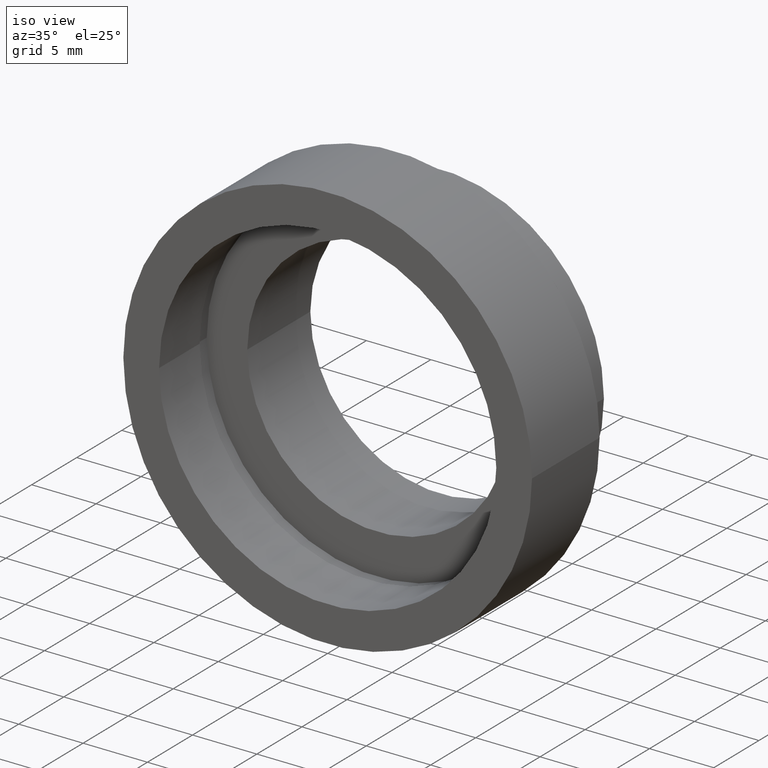
[diagram: clean part render]
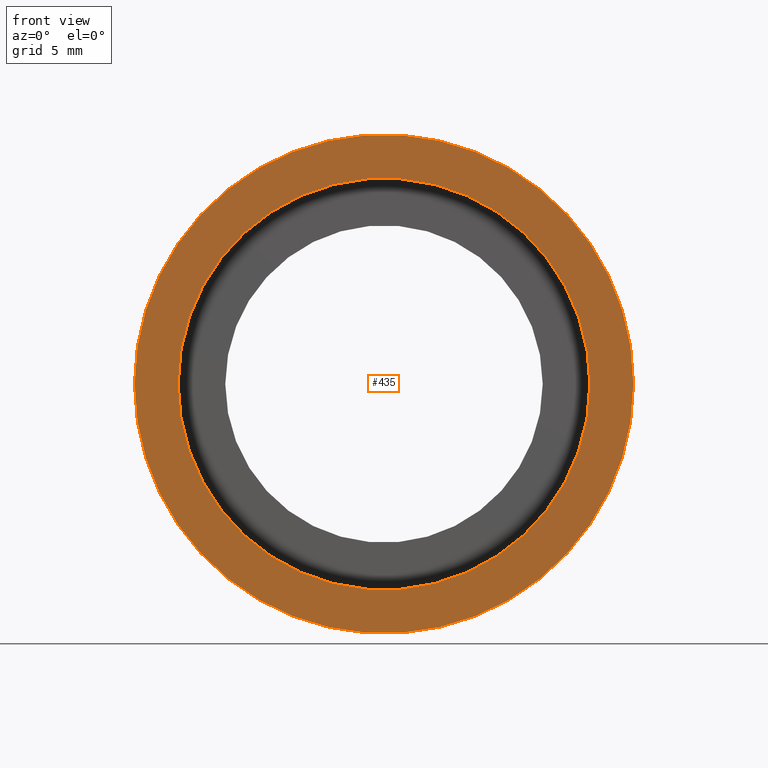
[diagram: tour spotlight — one face highlighted and labeled with its STEP entity id]
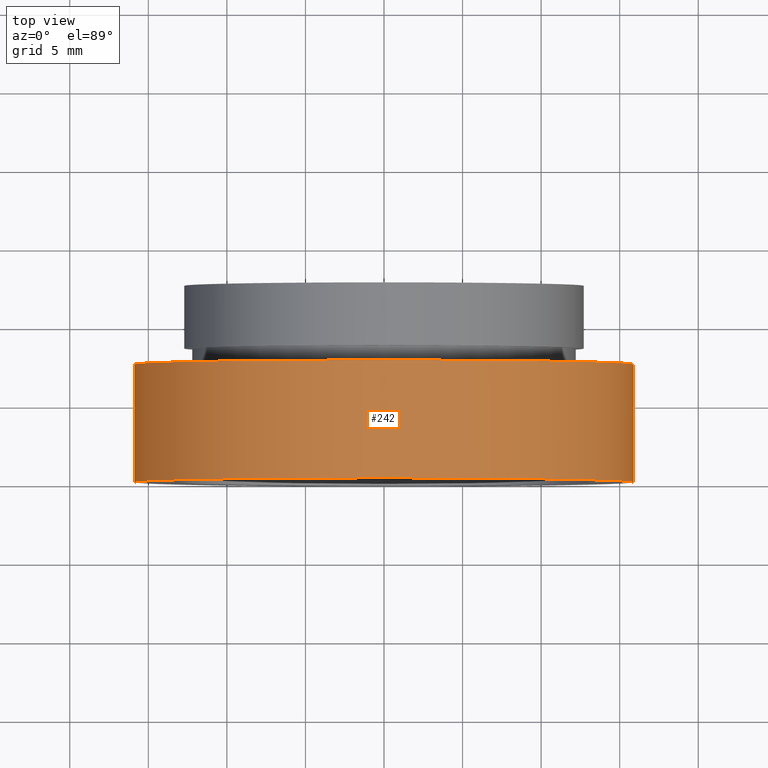
[diagram: tour spotlight — one face highlighted and labeled with its STEP entity id]
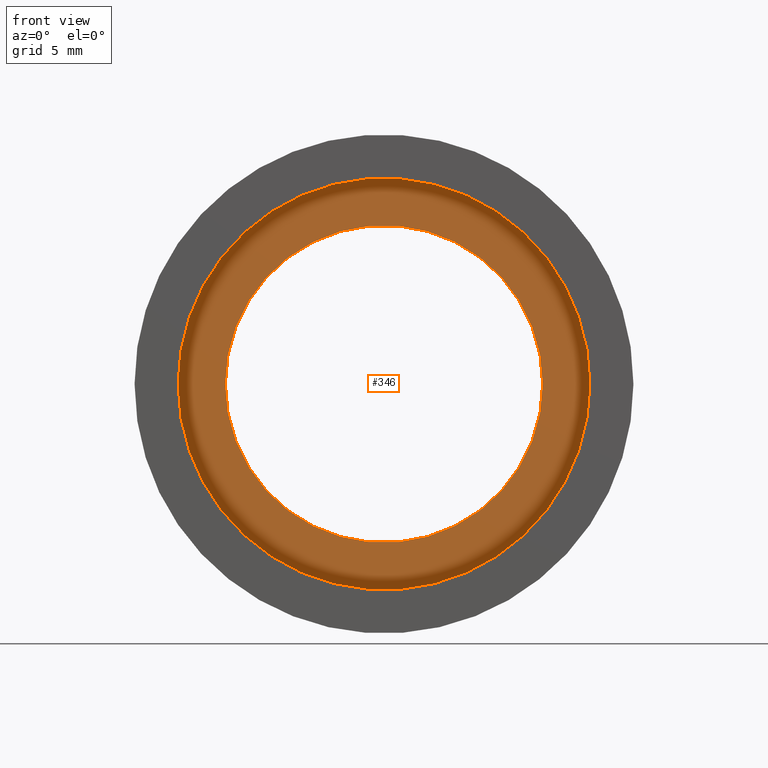
[diagram: tour spotlight — one face highlighted and labeled with its STEP entity id]
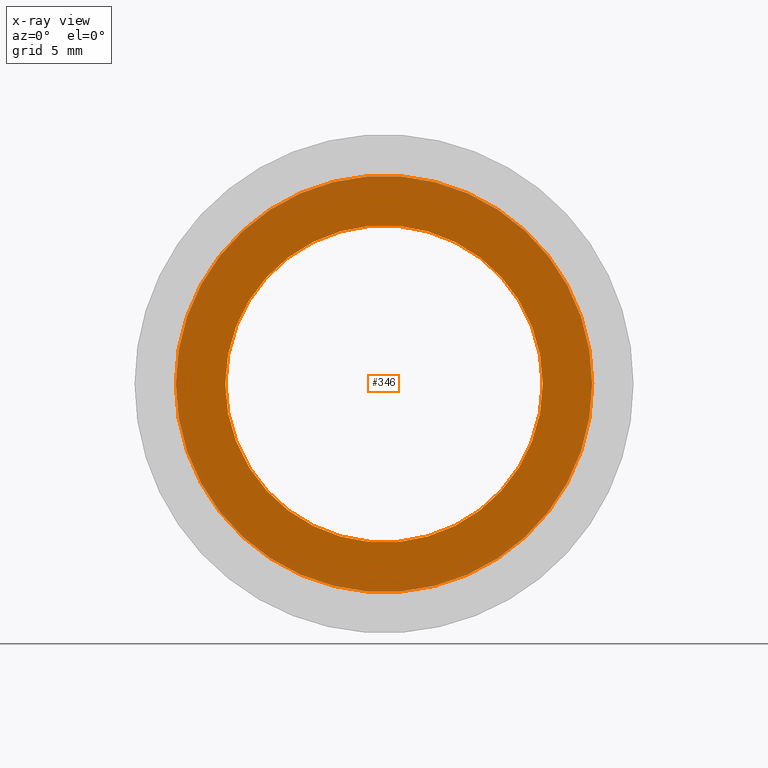
[diagram: x-ray of the same camera — body ghosted, this tour face saturated]
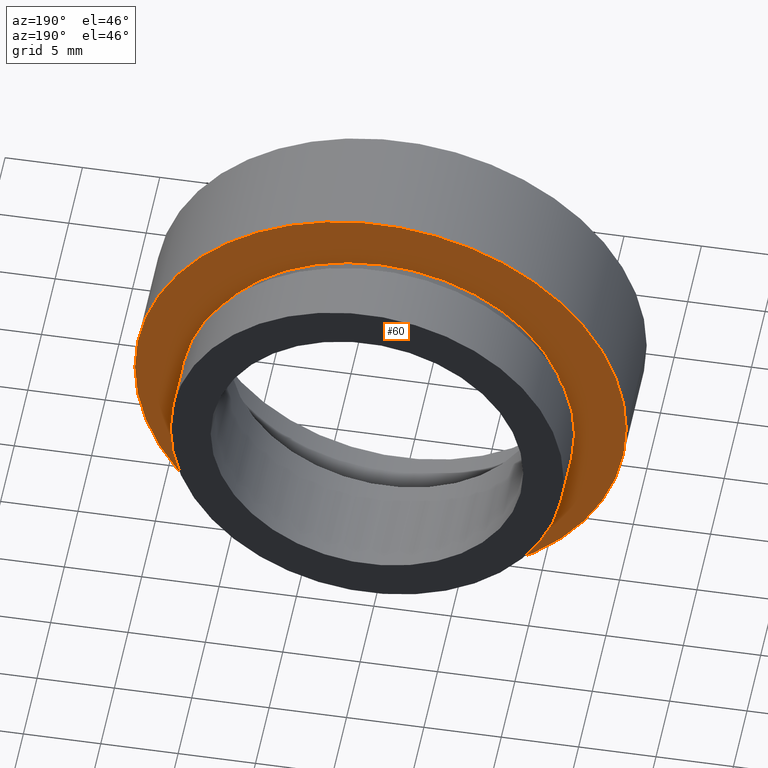
[diagram: tour spotlight — one face highlighted and labeled with its STEP entity id]
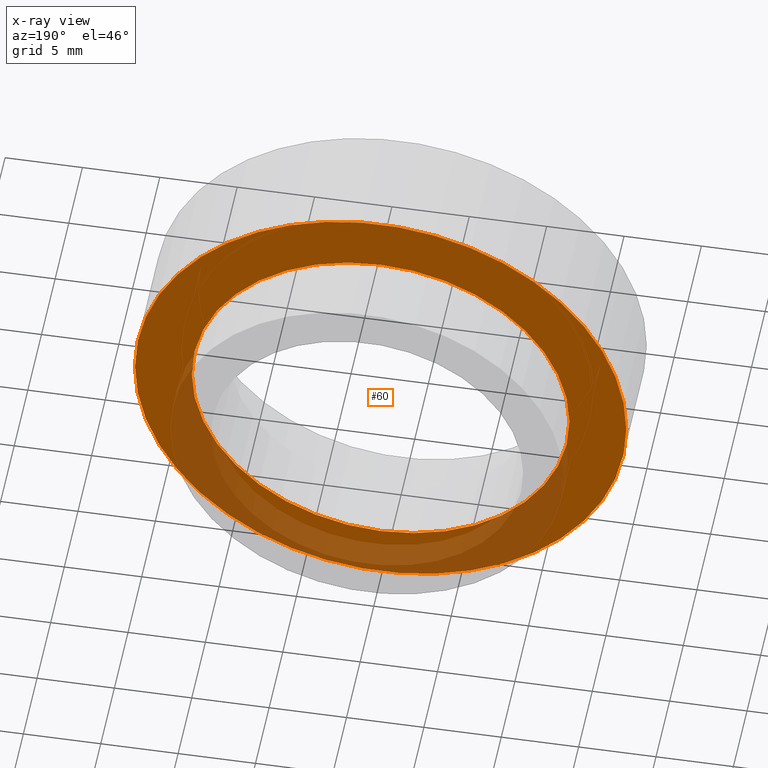
[diagram: x-ray of the same camera — body ghosted, this tour face saturated]
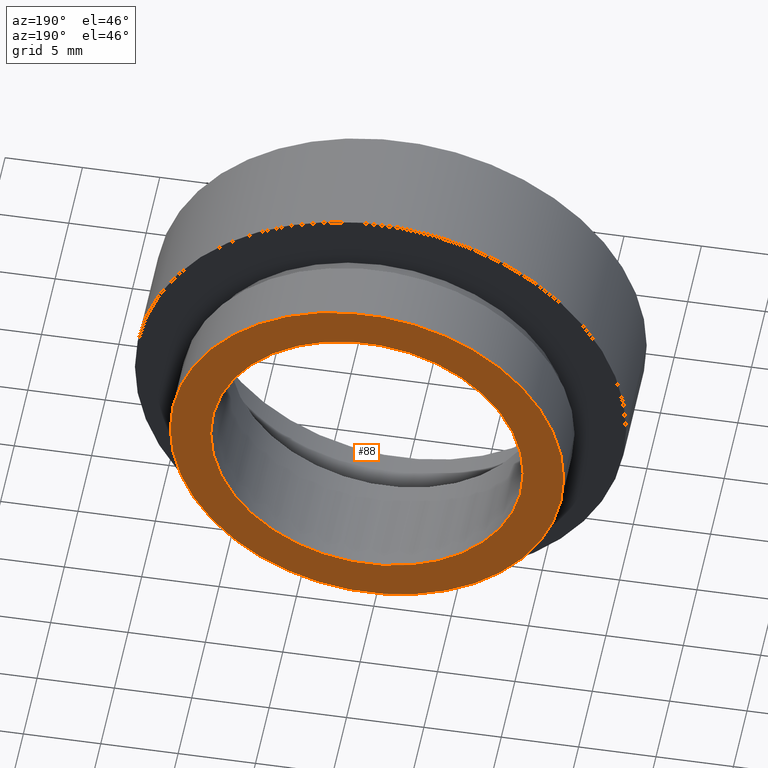
[diagram: tour spotlight — one face highlighted and labeled with its STEP entity id]
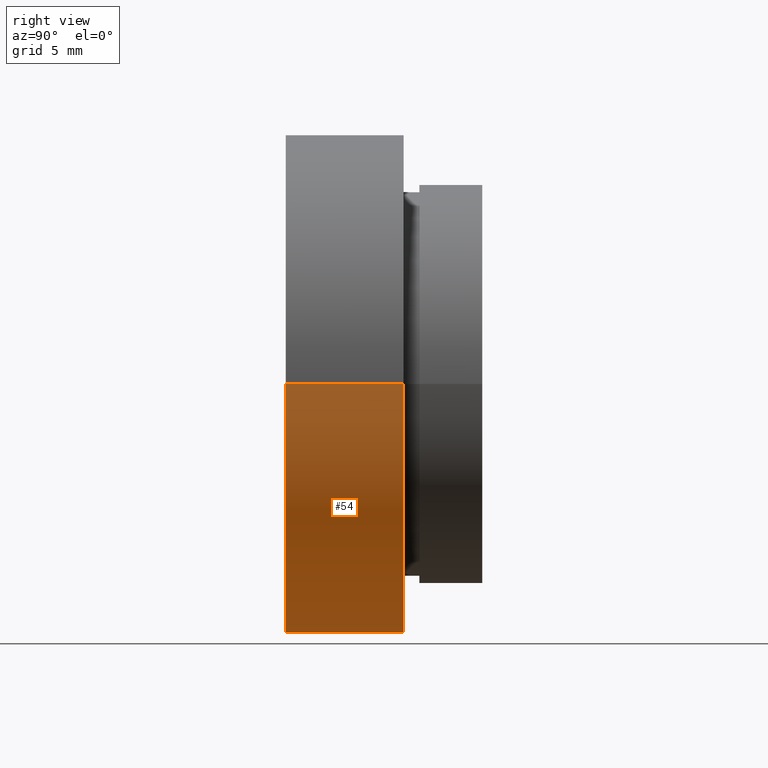
[diagram: tour spotlight — one face highlighted and labeled with its STEP entity id]
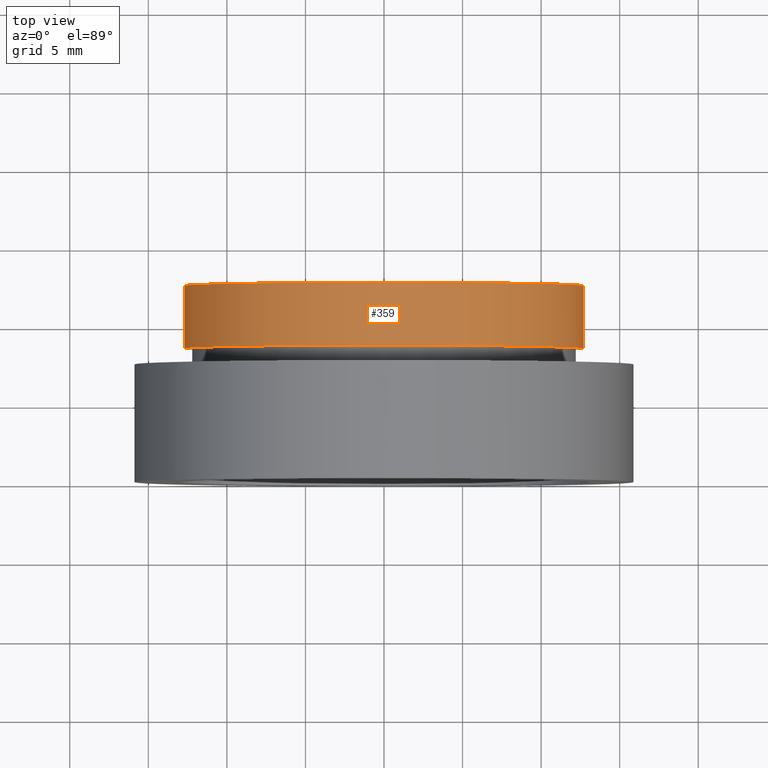
[diagram: tour spotlight — one face highlighted and labeled with its STEP entity id]
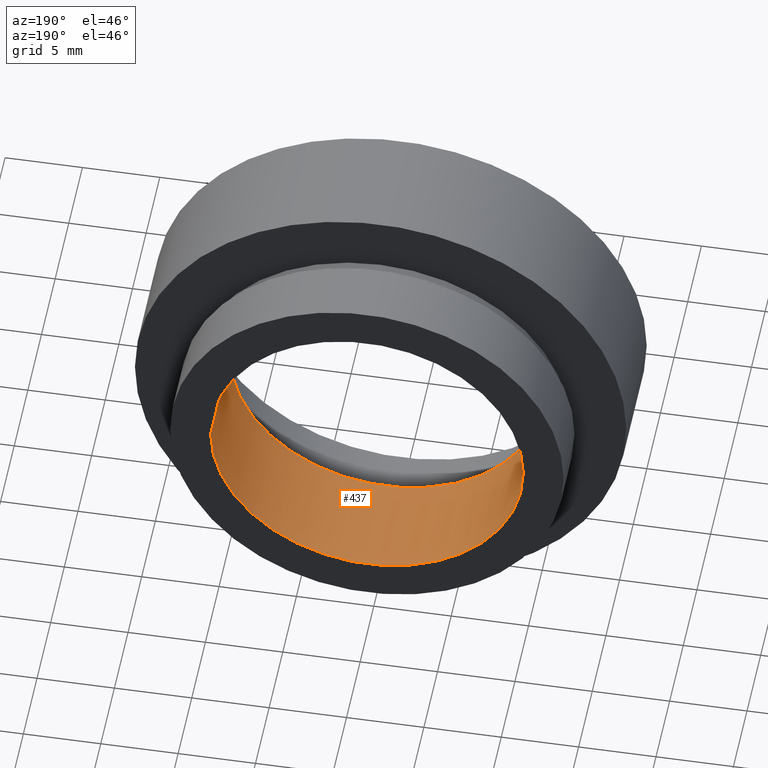
[diagram: tour spotlight — one face highlighted and labeled with its STEP entity id]
A machine part: a face-by-face anatomy tour. The part has 18 B-rep faces; the first image is the clean iso view, then the 8 largest visible faces are spotlighted one at a time (largest first), each with its STEP entity span.

Face 1 — front view, entity #435. In plain terms, the highlighted planar face has unit normal (-0, 1, 0).
Definition (entity closure, byte-faithful):
#27 = VERTEX_POINT ( 'NONE', #160 ) ;
#44 = VERTEX_POINT ( 'NONE', #164 ) ;
#47 = EDGE_CURVE ( 'NONE', #155, #258, #526, .T. ) ;
#49 = DIRECTION ( 'NONE',  ( -1.224646799147351000E-016, 1.000000000000000000, -0.0000000000000000000 ) ) ;
#52 = AXIS2_PLACEMENT_3D ( 'NONE', #387, #49, #618 ) ;
#61 = AXIS2_PLACEMENT_3D ( 'NONE', #302, #350, #425 ) ;
#91 = CARTESIAN_POINT ( 'NONE',  ( 15.87500000000000000, -1.944126793646428200E-016, 0.0000000000000000000 ) ) ;
#119 = CARTESIAN_POINT ( 'NONE',  ( 13.10000000000000100, 1.604287306883029700E-015, 1.604287306883032600E-015 ) ) ;
#132 = CIRCLE ( 'NONE', #52, 15.87499999999999600 ) ;
#155 = VERTEX_POINT ( 'NONE', #484 ) ;
#160 = CARTESIAN_POINT ( 'NONE',  ( -15.87499999999999300, -5.413573745600033100E-015, 0.0000000000000000000 ) ) ;
#164 = CARTESIAN_POINT ( 'NONE',  ( 15.87500000000000000, -1.525320158307194900E-015, 1.944126793646423200E-015 ) ) ;
#168 = AXIS2_PLACEMENT_3D ( 'NONE', #489, #535, #314 ) ;
#180 = FACE_OUTER_BOUND ( 'NONE', #211, .T. ) ;
#196 = ORIENTED_EDGE ( 'NONE', *, *, #490, .F. ) ;
#210 = ORIENTED_EDGE ( 'NONE', *, *, #461, .T. ) ;
#211 = EDGE_LOOP ( 'NONE', ( #196, #332 ) ) ;
#234 = FACE_BOUND ( 'NONE', #301, .T. ) ;
#240 = DIRECTION ( 'NONE',  ( -1.000000000000000000, -1.224646799147351000E-016, 0.0000000000000000000 ) ) ;
#254 = CIRCLE ( 'NONE', #611, 13.10000000000000000 ) ;
#258 = VERTEX_POINT ( 'NONE', #119 ) ;
#301 = EDGE_LOOP ( 'NONE', ( #408, #210 ) ) ;
#302 = CARTESIAN_POINT ( 'NONE',  ( 2.067940818438636500E-015, -3.469446951953614200E-015, 0.0000000000000000000 ) ) ;
#314 = DIRECTION ( 'NONE',  ( -1.000000000000000000, -1.224646799147351000E-016, 0.0000000000000000000 ) ) ;
#332 = ORIENTED_EDGE ( 'NONE', *, *, #507, .F. ) ;
#350 = DIRECTION ( 'NONE',  ( -1.224646799147351000E-016, 1.000000000000000000, -0.0000000000000000000 ) ) ;
#380 = DIRECTION ( 'NONE',  ( -1.000000000000000000, -1.224646799147351000E-016, 0.0000000000000000000 ) ) ;
#387 = CARTESIAN_POINT ( 'NONE',  ( 2.067940818438636500E-015, -3.469446951953614200E-015, 0.0000000000000000000 ) ) ;
#405 = CIRCLE ( 'NONE', #61, 15.87499999999999600 ) ;
#408 = ORIENTED_EDGE ( 'NONE', *, *, #47, .T. ) ;
#425 = DIRECTION ( 'NONE',  ( -1.000000000000000000, -1.224646799147350700E-016, 0.0000000000000000000 ) ) ;
#435 = ADVANCED_FACE ( 'NONE', ( #180, #234 ), #612, .F. ) ;
#461 = EDGE_CURVE ( 'NONE', #258, #155, #254, .T. ) ;
#484 = CARTESIAN_POINT ( 'NONE',  ( -13.09999999999999800, -1.604287306883029700E-015, 0.0000000000000000000 ) ) ;
#489 = CARTESIAN_POINT ( 'NONE',  ( 2.067940818438636100E-015, 0.0000000000000000000, 0.0000000000000000000 ) ) ;
#490 = EDGE_CURVE ( 'NONE', #27, #44, #132, .T. ) ;
#500 = AXIS2_PLACEMENT_3D ( 'NONE', #91, #568, #240 ) ;
#507 = EDGE_CURVE ( 'NONE', #44, #27, #405, .T. ) ;
#522 = DIRECTION ( 'NONE',  ( -1.224646799147351000E-016, 1.000000000000000000, -0.0000000000000000000 ) ) ;
#526 = CIRCLE ( 'NONE', #168, 13.10000000000000000 ) ;
#535 = DIRECTION ( 'NONE',  ( -1.224646799147351000E-016, 1.000000000000000000, -0.0000000000000000000 ) ) ;
#568 = DIRECTION ( 'NONE',  ( -1.224646799147351000E-016, 1.000000000000000000, 0.0000000000000000000 ) ) ;
#604 = CARTESIAN_POINT ( 'NONE',  ( 2.067940818438636100E-015, 0.0000000000000000000, 0.0000000000000000000 ) ) ;
#611 = AXIS2_PLACEMENT_3D ( 'NONE', #604, #522, #380 ) ;
#612 = PLANE ( 'NONE',  #500 ) ;
#618 = DIRECTION ( 'NONE',  ( -1.000000000000000000, -1.224646799147350700E-016, 0.0000000000000000000 ) ) ;

Face 2 — top view, entity #242. In plain terms, the highlighted cylindrical surface (partial cylindrical patch) has radius 15.875 mm, axis along (-0, 1, -0).
Definition (entity closure, byte-faithful):
#2 = EDGE_CURVE ( 'NONE', #27, #429, #486, .T. ) ;
#27 = VERTEX_POINT ( 'NONE', #160 ) ;
#44 = VERTEX_POINT ( 'NONE', #164 ) ;
#48 = DIRECTION ( 'NONE',  ( -1.224646799147351000E-016, 1.000000000000000000, -0.0000000000000000000 ) ) ;
#49 = DIRECTION ( 'NONE',  ( -1.224646799147351000E-016, 1.000000000000000000, -0.0000000000000000000 ) ) ;
#52 = AXIS2_PLACEMENT_3D ( 'NONE', #387, #49, #618 ) ;
#65 = CARTESIAN_POINT ( 'NONE',  ( 0.0000000000000000000, 16.88601823708207700, 0.0000000000000000000 ) ) ;
#67 = EDGE_CURVE ( 'NONE', #44, #361, #319, .T. ) ;
#108 = DIRECTION ( 'NONE',  ( -1.000000000000000000, -2.185478394931410600E-016, 0.0000000000000000000 ) ) ;
#113 = DIRECTION ( 'NONE',  ( -1.000000000000000000, -1.092739197465705300E-016, 0.0000000000000000000 ) ) ;
#122 = CARTESIAN_POINT ( 'NONE',  ( 15.87500000000000000, 16.88601823708208000, 1.944126793646423200E-015 ) ) ;
#123 = CARTESIAN_POINT ( 'NONE',  ( 15.87500000000000000, 7.500000000000000000, 1.944126793646423200E-015 ) ) ;
#128 = EDGE_CURVE ( 'NONE', #429, #361, #413, .T. ) ;
#132 = CIRCLE ( 'NONE', #52, 15.87499999999999600 ) ;
#153 = ORIENTED_EDGE ( 'NONE', *, *, #490, .T. ) ;
#158 = DIRECTION ( 'NONE',  ( -1.224646799147351000E-016, 1.000000000000000000, -0.0000000000000000000 ) ) ;
#160 = CARTESIAN_POINT ( 'NONE',  ( -15.87499999999999300, -5.413573745600033100E-015, 0.0000000000000000000 ) ) ;
#164 = CARTESIAN_POINT ( 'NONE',  ( 15.87500000000000000, -1.525320158307194900E-015, 1.944126793646423200E-015 ) ) ;
#165 = VECTOR ( 'NONE', #48, 1000.000000000000000 ) ;
#189 = CARTESIAN_POINT ( 'NONE',  ( -15.87500000000000000, 7.499999999999996400, 0.0000000000000000000 ) ) ;
#233 = CYLINDRICAL_SURFACE ( 'NONE', #532, 15.87500000000000000 ) ;
#242 = ADVANCED_FACE ( 'NONE', ( #544 ), #233, .T. ) ;
#261 = CARTESIAN_POINT ( 'NONE',  ( 1.149455719078122700E-015, 7.499999999999998200, 0.0000000000000000000 ) ) ;
#299 = VECTOR ( 'NONE', #553, 1000.000000000000000 ) ;
#319 = LINE ( 'NONE', #122, #299 ) ;
#331 = EDGE_LOOP ( 'NONE', ( #153, #449, #378, #594 ) ) ;
#347 = CARTESIAN_POINT ( 'NONE',  ( -15.87500000000000000, 16.88601823708207300, 0.0000000000000000000 ) ) ;
#361 = VERTEX_POINT ( 'NONE', #123 ) ;
#378 = ORIENTED_EDGE ( 'NONE', *, *, #128, .F. ) ;
#387 = CARTESIAN_POINT ( 'NONE',  ( 2.067940818438636500E-015, -3.469446951953614200E-015, 0.0000000000000000000 ) ) ;
#413 = CIRCLE ( 'NONE', #587, 15.87500000000000000 ) ;
#429 = VERTEX_POINT ( 'NONE', #189 ) ;
#449 = ORIENTED_EDGE ( 'NONE', *, *, #67, .T. ) ;
#486 = LINE ( 'NONE', #347, #165 ) ;
#490 = EDGE_CURVE ( 'NONE', #27, #44, #132, .T. ) ;
#532 = AXIS2_PLACEMENT_3D ( 'NONE', #65, #158, #108 ) ;
#544 = FACE_OUTER_BOUND ( 'NONE', #331, .T. ) ;
#553 = DIRECTION ( 'NONE',  ( -1.224646799147351000E-016, 1.000000000000000000, -0.0000000000000000000 ) ) ;
#582 = DIRECTION ( 'NONE',  ( -1.224646799147351000E-016, 1.000000000000000000, -0.0000000000000000000 ) ) ;
#587 = AXIS2_PLACEMENT_3D ( 'NONE', #261, #582, #113 ) ;
#594 = ORIENTED_EDGE ( 'NONE', *, *, #2, .F. ) ;
#618 = DIRECTION ( 'NONE',  ( -1.000000000000000000, -1.224646799147350700E-016, 0.0000000000000000000 ) ) ;

Face 3 — front view, entity #346. An x-ray twin of the same camera follows (body ghosted, this face saturated) — the face is partly hidden behind the body. In plain terms, the highlighted planar face has unit normal (-0, 1, 0).
Definition (entity closure, byte-faithful):
#7 = CARTESIAN_POINT ( 'NONE',  ( 10.10000000000000100, 5.499999999999997300, 1.236893267138826600E-015 ) ) ;
#41 = AXIS2_PLACEMENT_3D ( 'NONE', #567, #419, #92 ) ;
#75 = PLANE ( 'NONE',  #355 ) ;
#84 = CIRCLE ( 'NONE', #41, 13.25000000000000000 ) ;
#92 = DIRECTION ( 'NONE',  ( -1.000000000000000000, -1.309225264888156400E-016, 0.0000000000000000000 ) ) ;
#95 = EDGE_LOOP ( 'NONE', ( #288, #337 ) ) ;
#99 = DIRECTION ( 'NONE',  ( -1.000000000000000000, -8.587739980083203700E-017, 0.0000000000000000000 ) ) ;
#118 = VERTEX_POINT ( 'NONE', #7 ) ;
#137 = EDGE_CURVE ( 'NONE', #118, #531, #620, .T. ) ;
#149 = CARTESIAN_POINT ( 'NONE',  ( -10.09999999999999800, 5.499999999999995600, 0.0000000000000000000 ) ) ;
#166 = AXIS2_PLACEMENT_3D ( 'NONE', #401, #215, #308 ) ;
#171 = EDGE_LOOP ( 'NONE', ( #602, #564 ) ) ;
#201 = CARTESIAN_POINT ( 'NONE',  ( 1.394385078907593200E-015, 5.499999999999996400, 0.0000000000000000000 ) ) ;
#215 = DIRECTION ( 'NONE',  ( -1.224646799147351000E-016, 1.000000000000000000, -0.0000000000000000000 ) ) ;
#277 = DIRECTION ( 'NONE',  ( -1.000000000000000000, -1.224646799147351000E-016, 0.0000000000000000000 ) ) ;
#280 = FACE_OUTER_BOUND ( 'NONE', #171, .T. ) ;
#287 = VERTEX_POINT ( 'NONE', #498 ) ;
#288 = ORIENTED_EDGE ( 'NONE', *, *, #470, .T. ) ;
#308 = DIRECTION ( 'NONE',  ( -1.000000000000000000, -8.587739980083203700E-017, 0.0000000000000000000 ) ) ;
#323 = CARTESIAN_POINT ( 'NONE',  ( 10.10000000000000100, 5.499999999999998200, 0.0000000000000000000 ) ) ;
#337 = ORIENTED_EDGE ( 'NONE', *, *, #137, .T. ) ;
#342 = VERTEX_POINT ( 'NONE', #367 ) ;
#346 = ADVANCED_FACE ( 'NONE', ( #280, #543 ), #75, .F. ) ;
#355 = AXIS2_PLACEMENT_3D ( 'NONE', #323, #370, #277 ) ;
#367 = CARTESIAN_POINT ( 'NONE',  ( 13.25000000000000400, 5.499999999999998200, 1.622657008870243100E-015 ) ) ;
#370 = DIRECTION ( 'NONE',  ( -1.224646799147351000E-016, 1.000000000000000000, 0.0000000000000000000 ) ) ;
#384 = EDGE_CURVE ( 'NONE', #287, #342, #84, .T. ) ;
#401 = CARTESIAN_POINT ( 'NONE',  ( 1.394385078907593200E-015, 5.499999999999996400, 0.0000000000000000000 ) ) ;
#419 = DIRECTION ( 'NONE',  ( -1.224646799147351000E-016, 1.000000000000000000, -0.0000000000000000000 ) ) ;
#470 = EDGE_CURVE ( 'NONE', #531, #118, #590, .T. ) ;
#492 = CIRCLE ( 'NONE', #546, 13.25000000000000000 ) ;
#495 = EDGE_CURVE ( 'NONE', #342, #287, #492, .T. ) ;
#498 = CARTESIAN_POINT ( 'NONE',  ( -13.24999999999999800, 5.499999999999994700, 0.0000000000000000000 ) ) ;
#529 = DIRECTION ( 'NONE',  ( -1.224646799147351000E-016, 1.000000000000000000, -0.0000000000000000000 ) ) ;
#531 = VERTEX_POINT ( 'NONE', #149 ) ;
#543 = FACE_BOUND ( 'NONE', #95, .T. ) ;
#546 = AXIS2_PLACEMENT_3D ( 'NONE', #201, #529, #575 ) ;
#558 = AXIS2_PLACEMENT_3D ( 'NONE', #573, #579, #99 ) ;
#564 = ORIENTED_EDGE ( 'NONE', *, *, #495, .F. ) ;
#567 = CARTESIAN_POINT ( 'NONE',  ( 1.394385078907593200E-015, 5.499999999999996400, 0.0000000000000000000 ) ) ;
#573 = CARTESIAN_POINT ( 'NONE',  ( 1.394385078907593200E-015, 5.499999999999996400, 0.0000000000000000000 ) ) ;
#575 = DIRECTION ( 'NONE',  ( -1.000000000000000000, -1.309225264888156400E-016, 0.0000000000000000000 ) ) ;
#579 = DIRECTION ( 'NONE',  ( -1.224646799147351000E-016, 1.000000000000000000, -0.0000000000000000000 ) ) ;
#590 = CIRCLE ( 'NONE', #558, 10.10000000000000000 ) ;
#602 = ORIENTED_EDGE ( 'NONE', *, *, #384, .F. ) ;
#620 = CIRCLE ( 'NONE', #166, 10.10000000000000000 ) ;

Face 4 — auxiliary view, entity #60. An x-ray twin of the same camera follows (body ghosted, this face saturated) — the face is partly hidden behind the body. In plain terms, the highlighted planar face has unit normal (0, -1, 0).
Definition (entity closure, byte-faithful):
#6 = DIRECTION ( 'NONE',  ( -1.224646799147351000E-016, 1.000000000000000000, -0.0000000000000000000 ) ) ;
#23 = AXIS2_PLACEMENT_3D ( 'NONE', #38, #42, #43 ) ;
#25 = DIRECTION ( 'NONE',  ( 1.000000000000000000, 1.224646799147351000E-016, 0.0000000000000000000 ) ) ;
#38 = CARTESIAN_POINT ( 'NONE',  ( 1.149455719078122700E-015, 7.499999999999998200, 0.0000000000000000000 ) ) ;
#42 = DIRECTION ( 'NONE',  ( -1.224646799147351000E-016, 1.000000000000000000, -0.0000000000000000000 ) ) ;
#43 = DIRECTION ( 'NONE',  ( -1.000000000000000000, -1.421904488505579700E-016, 0.0000000000000000000 ) ) ;
#50 = CIRCLE ( 'NONE', #511, 12.19999999999999900 ) ;
#60 = ADVANCED_FACE ( 'NONE', ( #147, #179 ), #220, .F. ) ;
#63 = ORIENTED_EDGE ( 'NONE', *, *, #528, .T. ) ;
#69 = CARTESIAN_POINT ( 'NONE',  ( 12.20000000000000100, 7.500000000000000000, 1.494069094959770900E-015 ) ) ;
#112 = DIRECTION ( 'NONE',  ( 1.224646799147351000E-016, -1.000000000000000000, 0.0000000000000000000 ) ) ;
#113 = DIRECTION ( 'NONE',  ( -1.000000000000000000, -1.092739197465705300E-016, 0.0000000000000000000 ) ) ;
#123 = CARTESIAN_POINT ( 'NONE',  ( 15.87500000000000000, 7.500000000000000000, 1.944126793646423200E-015 ) ) ;
#125 = ORIENTED_EDGE ( 'NONE', *, *, #441, .F. ) ;
#128 = EDGE_CURVE ( 'NONE', #429, #361, #413, .T. ) ;
#140 = ORIENTED_EDGE ( 'NONE', *, *, #204, .F. ) ;
#144 = CARTESIAN_POINT ( 'NONE',  ( -12.19999999999999800, 7.499999999999996400, 0.0000000000000000000 ) ) ;
#147 = FACE_BOUND ( 'NONE', #186, .T. ) ;
#162 = CARTESIAN_POINT ( 'NONE',  ( 1.149455719078122700E-015, 7.499999999999998200, 0.0000000000000000000 ) ) ;
#179 = FACE_OUTER_BOUND ( 'NONE', #565, .T. ) ;
#186 = EDGE_LOOP ( 'NONE', ( #140, #125 ) ) ;
#189 = CARTESIAN_POINT ( 'NONE',  ( -15.87500000000000000, 7.499999999999996400, 0.0000000000000000000 ) ) ;
#204 = EDGE_CURVE ( 'NONE', #467, #391, #50, .T. ) ;
#220 = PLANE ( 'NONE',  #333 ) ;
#252 = CARTESIAN_POINT ( 'NONE',  ( 1.149455719078122700E-015, 7.499999999999998200, 0.0000000000000000000 ) ) ;
#261 = CARTESIAN_POINT ( 'NONE',  ( 1.149455719078122700E-015, 7.499999999999998200, 0.0000000000000000000 ) ) ;
#266 = CIRCLE ( 'NONE', #23, 12.19999999999999900 ) ;
#333 = AXIS2_PLACEMENT_3D ( 'NONE', #396, #112, #25 ) ;
#361 = VERTEX_POINT ( 'NONE', #123 ) ;
#391 = VERTEX_POINT ( 'NONE', #69 ) ;
#396 = CARTESIAN_POINT ( 'NONE',  ( 12.20000000000000100, 7.500000000000000000, 0.0000000000000000000 ) ) ;
#413 = CIRCLE ( 'NONE', #587, 15.87500000000000000 ) ;
#427 = DIRECTION ( 'NONE',  ( -1.000000000000000000, -1.092739197465705300E-016, 0.0000000000000000000 ) ) ;
#429 = VERTEX_POINT ( 'NONE', #189 ) ;
#441 = EDGE_CURVE ( 'NONE', #391, #467, #266, .T. ) ;
#464 = AXIS2_PLACEMENT_3D ( 'NONE', #252, #6, #427 ) ;
#467 = VERTEX_POINT ( 'NONE', #144 ) ;
#491 = DIRECTION ( 'NONE',  ( -1.224646799147351000E-016, 1.000000000000000000, -0.0000000000000000000 ) ) ;
#511 = AXIS2_PLACEMENT_3D ( 'NONE', #162, #491, #542 ) ;
#528 = EDGE_CURVE ( 'NONE', #361, #429, #623, .T. ) ;
#530 = ORIENTED_EDGE ( 'NONE', *, *, #128, .T. ) ;
#542 = DIRECTION ( 'NONE',  ( -1.000000000000000000, -1.421904488505579700E-016, 0.0000000000000000000 ) ) ;
#565 = EDGE_LOOP ( 'NONE', ( #530, #63 ) ) ;
#582 = DIRECTION ( 'NONE',  ( -1.224646799147351000E-016, 1.000000000000000000, -0.0000000000000000000 ) ) ;
#587 = AXIS2_PLACEMENT_3D ( 'NONE', #261, #582, #113 ) ;
#623 = CIRCLE ( 'NONE', #464, 15.87500000000000000 ) ;

Face 5 — auxiliary view, entity #88. In plain terms, the highlighted planar face has unit normal (0, -1, 0).
Definition (entity closure, byte-faithful):
#15 = DIRECTION ( 'NONE',  ( -1.224646799147351000E-016, 1.000000000000000000, -0.0000000000000000000 ) ) ;
#19 = CARTESIAN_POINT ( 'NONE',  ( 5.371323195044473300E-016, 12.49999999999999600, 0.0000000000000000000 ) ) ;
#22 = CIRCLE ( 'NONE', #285, 12.71000000000000100 ) ;
#34 = EDGE_CURVE ( 'NONE', #257, #322, #510, .T. ) ;
#36 = EDGE_CURVE ( 'NONE', #482, #181, #284, .T. ) ;
#37 = FACE_OUTER_BOUND ( 'NONE', #87, .T. ) ;
#79 = DIRECTION ( 'NONE',  ( 1.224646799147351000E-016, -1.000000000000000000, 0.0000000000000000000 ) ) ;
#87 = EDGE_LOOP ( 'NONE', ( #231, #90 ) ) ;
#88 = ADVANCED_FACE ( 'NONE', ( #357, #37 ), #274, .F. ) ;
#90 = ORIENTED_EDGE ( 'NONE', *, *, #193, .T. ) ;
#106 = AXIS2_PLACEMENT_3D ( 'NONE', #213, #585, #589 ) ;
#124 = DIRECTION ( 'NONE',  ( 1.000000000000000000, 1.224646799147351000E-016, 0.0000000000000000000 ) ) ;
#127 = CARTESIAN_POINT ( 'NONE',  ( 5.371323195044473300E-016, 12.49999999999999600, 0.0000000000000000000 ) ) ;
#129 = AXIS2_PLACEMENT_3D ( 'NONE', #127, #503, #316 ) ;
#156 = CARTESIAN_POINT ( 'NONE',  ( 5.371323195044474300E-016, 12.49999999999999600, 0.0000000000000000000 ) ) ;
#172 = CARTESIAN_POINT ( 'NONE',  ( 12.71000000000000300, 12.49999999999999800, 1.556526081716286200E-015 ) ) ;
#181 = VERTEX_POINT ( 'NONE', #259 ) ;
#193 = EDGE_CURVE ( 'NONE', #322, #257, #22, .T. ) ;
#197 = CARTESIAN_POINT ( 'NONE',  ( 10.10000000000000000, 12.49999999999999800, 1.236893267138826600E-015 ) ) ;
#213 = CARTESIAN_POINT ( 'NONE',  ( 5.371323195044474300E-016, 12.49999999999999600, 0.0000000000000000000 ) ) ;
#224 = EDGE_LOOP ( 'NONE', ( #275, #295 ) ) ;
#231 = ORIENTED_EDGE ( 'NONE', *, *, #34, .T. ) ;
#257 = VERTEX_POINT ( 'NONE', #272 ) ;
#259 = CARTESIAN_POINT ( 'NONE',  ( -10.10000000000000000, 12.49999999999999500, 0.0000000000000000000 ) ) ;
#270 = AXIS2_PLACEMENT_3D ( 'NONE', #19, #15, #595 ) ;
#272 = CARTESIAN_POINT ( 'NONE',  ( -12.71000000000000100, 12.49999999999999500, 0.0000000000000000000 ) ) ;
#274 = PLANE ( 'NONE',  #424 ) ;
#275 = ORIENTED_EDGE ( 'NONE', *, *, #363, .F. ) ;
#284 = CIRCLE ( 'NONE', #270, 10.10000000000000000 ) ;
#285 = AXIS2_PLACEMENT_3D ( 'NONE', #156, #397, #481 ) ;
#295 = ORIENTED_EDGE ( 'NONE', *, *, #36, .F. ) ;
#316 = DIRECTION ( 'NONE',  ( -1.000000000000000000, -1.717547996016640700E-016, 0.0000000000000000000 ) ) ;
#322 = VERTEX_POINT ( 'NONE', #172 ) ;
#327 = CARTESIAN_POINT ( 'NONE',  ( 10.10000000000000000, 12.49999999999999800, 0.0000000000000000000 ) ) ;
#357 = FACE_BOUND ( 'NONE', #224, .T. ) ;
#363 = EDGE_CURVE ( 'NONE', #181, #482, #514, .T. ) ;
#397 = DIRECTION ( 'NONE',  ( -1.224646799147351000E-016, 1.000000000000000000, -0.0000000000000000000 ) ) ;
#424 = AXIS2_PLACEMENT_3D ( 'NONE', #327, #79, #124 ) ;
#481 = DIRECTION ( 'NONE',  ( -1.000000000000000000, -1.364849312334230500E-016, 0.0000000000000000000 ) ) ;
#482 = VERTEX_POINT ( 'NONE', #197 ) ;
#503 = DIRECTION ( 'NONE',  ( -1.224646799147351000E-016, 1.000000000000000000, -0.0000000000000000000 ) ) ;
#510 = CIRCLE ( 'NONE', #106, 12.71000000000000100 ) ;
#514 = CIRCLE ( 'NONE', #129, 10.10000000000000000 ) ;
#585 = DIRECTION ( 'NONE',  ( -1.224646799147351000E-016, 1.000000000000000000, -0.0000000000000000000 ) ) ;
#589 = DIRECTION ( 'NONE',  ( -1.000000000000000000, -1.364849312334230500E-016, 0.0000000000000000000 ) ) ;
#595 = DIRECTION ( 'NONE',  ( -1.000000000000000000, -1.717547996016640700E-016, 0.0000000000000000000 ) ) ;

Face 6 — right view, entity #54. In plain terms, the highlighted cylindrical surface (partial cylindrical patch) has radius 15.875 mm, axis along (-0, 1, -0).
Definition (entity closure, byte-faithful):
#2 = EDGE_CURVE ( 'NONE', #27, #429, #486, .T. ) ;
#6 = DIRECTION ( 'NONE',  ( -1.224646799147351000E-016, 1.000000000000000000, -0.0000000000000000000 ) ) ;
#27 = VERTEX_POINT ( 'NONE', #160 ) ;
#35 = FACE_OUTER_BOUND ( 'NONE', #303, .T. ) ;
#44 = VERTEX_POINT ( 'NONE', #164 ) ;
#48 = DIRECTION ( 'NONE',  ( -1.224646799147351000E-016, 1.000000000000000000, -0.0000000000000000000 ) ) ;
#54 = ADVANCED_FACE ( 'NONE', ( #35 ), #365, .T. ) ;
#61 = AXIS2_PLACEMENT_3D ( 'NONE', #302, #350, #425 ) ;
#67 = EDGE_CURVE ( 'NONE', #44, #361, #319, .T. ) ;
#102 = ORIENTED_EDGE ( 'NONE', *, *, #507, .T. ) ;
#122 = CARTESIAN_POINT ( 'NONE',  ( 15.87500000000000000, 16.88601823708208000, 1.944126793646423200E-015 ) ) ;
#123 = CARTESIAN_POINT ( 'NONE',  ( 15.87500000000000000, 7.500000000000000000, 1.944126793646423200E-015 ) ) ;
#160 = CARTESIAN_POINT ( 'NONE',  ( -15.87499999999999300, -5.413573745600033100E-015, 0.0000000000000000000 ) ) ;
#164 = CARTESIAN_POINT ( 'NONE',  ( 15.87500000000000000, -1.525320158307194900E-015, 1.944126793646423200E-015 ) ) ;
#165 = VECTOR ( 'NONE', #48, 1000.000000000000000 ) ;
#187 = ORIENTED_EDGE ( 'NONE', *, *, #528, .F. ) ;
#189 = CARTESIAN_POINT ( 'NONE',  ( -15.87500000000000000, 7.499999999999996400, 0.0000000000000000000 ) ) ;
#236 = ORIENTED_EDGE ( 'NONE', *, *, #2, .T. ) ;
#252 = CARTESIAN_POINT ( 'NONE',  ( 1.149455719078122700E-015, 7.499999999999998200, 0.0000000000000000000 ) ) ;
#299 = VECTOR ( 'NONE', #553, 1000.000000000000000 ) ;
#302 = CARTESIAN_POINT ( 'NONE',  ( 2.067940818438636500E-015, -3.469446951953614200E-015, 0.0000000000000000000 ) ) ;
#303 = EDGE_LOOP ( 'NONE', ( #560, #102, #236, #187 ) ) ;
#311 = CARTESIAN_POINT ( 'NONE',  ( 0.0000000000000000000, 16.88601823708207700, 0.0000000000000000000 ) ) ;
#312 = AXIS2_PLACEMENT_3D ( 'NONE', #311, #318, #445 ) ;
#318 = DIRECTION ( 'NONE',  ( -1.224646799147351000E-016, 1.000000000000000000, -0.0000000000000000000 ) ) ;
#319 = LINE ( 'NONE', #122, #299 ) ;
#347 = CARTESIAN_POINT ( 'NONE',  ( -15.87500000000000000, 16.88601823708207300, 0.0000000000000000000 ) ) ;
#350 = DIRECTION ( 'NONE',  ( -1.224646799147351000E-016, 1.000000000000000000, -0.0000000000000000000 ) ) ;
#361 = VERTEX_POINT ( 'NONE', #123 ) ;
#365 = CYLINDRICAL_SURFACE ( 'NONE', #312, 15.87500000000000000 ) ;
#405 = CIRCLE ( 'NONE', #61, 15.87499999999999600 ) ;
#425 = DIRECTION ( 'NONE',  ( -1.000000000000000000, -1.224646799147350700E-016, 0.0000000000000000000 ) ) ;
#427 = DIRECTION ( 'NONE',  ( -1.000000000000000000, -1.092739197465705300E-016, 0.0000000000000000000 ) ) ;
#429 = VERTEX_POINT ( 'NONE', #189 ) ;
#445 = DIRECTION ( 'NONE',  ( -1.000000000000000000, -2.185478394931410600E-016, 0.0000000000000000000 ) ) ;
#464 = AXIS2_PLACEMENT_3D ( 'NONE', #252, #6, #427 ) ;
#486 = LINE ( 'NONE', #347, #165 ) ;
#507 = EDGE_CURVE ( 'NONE', #44, #27, #405, .T. ) ;
#528 = EDGE_CURVE ( 'NONE', #361, #429, #623, .T. ) ;
#553 = DIRECTION ( 'NONE',  ( -1.224646799147351000E-016, 1.000000000000000000, -0.0000000000000000000 ) ) ;
#560 = ORIENTED_EDGE ( 'NONE', *, *, #67, .F. ) ;
#623 = CIRCLE ( 'NONE', #464, 15.87500000000000000 ) ;

Face 7 — top view, entity #359. In plain terms, the highlighted cylindrical surface (partial cylindrical patch) has radius 12.71 mm, axis along (-0, 1, -0).
Definition (entity closure, byte-faithful):
#9 = ORIENTED_EDGE ( 'NONE', *, *, #276, .T. ) ;
#21 = CARTESIAN_POINT ( 'NONE',  ( 12.70999999999999900, 16.88601823708207700, 1.556526081716285800E-015 ) ) ;
#24 = DIRECTION ( 'NONE',  ( -1.000000000000000000, 0.0000000000000000000, 0.0000000000000000000 ) ) ;
#26 = CIRCLE ( 'NONE', #406, 12.70999999999999900 ) ;
#34 = EDGE_CURVE ( 'NONE', #257, #322, #510, .T. ) ;
#51 = DIRECTION ( 'NONE',  ( -1.224646799147351000E-016, 1.000000000000000000, -0.0000000000000000000 ) ) ;
#55 = CYLINDRICAL_SURFACE ( 'NONE', #109, 12.70999999999999900 ) ;
#68 = VECTOR ( 'NONE', #229, 1000.000000000000000 ) ;
#100 = LINE ( 'NONE', #21, #68 ) ;
#106 = AXIS2_PLACEMENT_3D ( 'NONE', #213, #585, #589 ) ;
#109 = AXIS2_PLACEMENT_3D ( 'NONE', #225, #599, #24 ) ;
#126 = ORIENTED_EDGE ( 'NONE', *, *, #291, .F. ) ;
#172 = CARTESIAN_POINT ( 'NONE',  ( 12.71000000000000300, 12.49999999999999800, 1.556526081716286200E-015 ) ) ;
#213 = CARTESIAN_POINT ( 'NONE',  ( 5.371323195044474300E-016, 12.49999999999999600, 0.0000000000000000000 ) ) ;
#225 = CARTESIAN_POINT ( 'NONE',  ( 0.0000000000000000000, 16.88601823708207700, 0.0000000000000000000 ) ) ;
#229 = DIRECTION ( 'NONE',  ( -1.224646799147351000E-016, 1.000000000000000000, -0.0000000000000000000 ) ) ;
#257 = VERTEX_POINT ( 'NONE', #272 ) ;
#272 = CARTESIAN_POINT ( 'NONE',  ( -12.71000000000000100, 12.49999999999999500, 0.0000000000000000000 ) ) ;
#276 = EDGE_CURVE ( 'NONE', #438, #322, #100, .T. ) ;
#281 = VECTOR ( 'NONE', #451, 1000.000000000000000 ) ;
#291 = EDGE_CURVE ( 'NONE', #591, #257, #556, .T. ) ;
#296 = DIRECTION ( 'NONE',  ( -1.000000000000000000, -1.364849312334230700E-016, 0.0000000000000000000 ) ) ;
#322 = VERTEX_POINT ( 'NONE', #172 ) ;
#351 = EDGE_LOOP ( 'NONE', ( #386, #9, #455, #126 ) ) ;
#359 = ADVANCED_FACE ( 'NONE', ( #478 ), #55, .T. ) ;
#386 = ORIENTED_EDGE ( 'NONE', *, *, #572, .T. ) ;
#406 = AXIS2_PLACEMENT_3D ( 'NONE', #472, #51, #296 ) ;
#431 = CARTESIAN_POINT ( 'NONE',  ( -12.70999999999999700, 8.499999999999996400, 0.0000000000000000000 ) ) ;
#438 = VERTEX_POINT ( 'NONE', #615 ) ;
#446 = CARTESIAN_POINT ( 'NONE',  ( -12.70999999999999900, 16.88601823708207700, 0.0000000000000000000 ) ) ;
#451 = DIRECTION ( 'NONE',  ( -1.224646799147351000E-016, 1.000000000000000000, -0.0000000000000000000 ) ) ;
#455 = ORIENTED_EDGE ( 'NONE', *, *, #34, .F. ) ;
#472 = CARTESIAN_POINT ( 'NONE',  ( 1.026991039163387700E-015, 8.499999999999998200, 0.0000000000000000000 ) ) ;
#478 = FACE_OUTER_BOUND ( 'NONE', #351, .T. ) ;
#510 = CIRCLE ( 'NONE', #106, 12.71000000000000100 ) ;
#556 = LINE ( 'NONE', #446, #281 ) ;
#572 = EDGE_CURVE ( 'NONE', #591, #438, #26, .T. ) ;
#585 = DIRECTION ( 'NONE',  ( -1.224646799147351000E-016, 1.000000000000000000, -0.0000000000000000000 ) ) ;
#589 = DIRECTION ( 'NONE',  ( -1.000000000000000000, -1.364849312334230500E-016, 0.0000000000000000000 ) ) ;
#591 = VERTEX_POINT ( 'NONE', #431 ) ;
#599 = DIRECTION ( 'NONE',  ( -1.224646799147351000E-016, 1.000000000000000000, -0.0000000000000000000 ) ) ;
#615 = CARTESIAN_POINT ( 'NONE',  ( 12.71000000000000300, 8.500000000000000000, 1.556526081716286200E-015 ) ) ;

Face 8 — auxiliary view, entity #437. In plain terms, the highlighted cylindrical surface (partial cylindrical patch) has radius 10.1 mm, axis along (-0, 1, -0).
Definition (entity closure, byte-faithful):
#7 = CARTESIAN_POINT ( 'NONE',  ( 10.10000000000000100, 5.499999999999997300, 1.236893267138826600E-015 ) ) ;
#15 = DIRECTION ( 'NONE',  ( -1.224646799147351000E-016, 1.000000000000000000, -0.0000000000000000000 ) ) ;
#19 = CARTESIAN_POINT ( 'NONE',  ( 5.371323195044473300E-016, 12.49999999999999600, 0.0000000000000000000 ) ) ;
#36 = EDGE_CURVE ( 'NONE', #482, #181, #284, .T. ) ;
#118 = VERTEX_POINT ( 'NONE', #7 ) ;
#137 = EDGE_CURVE ( 'NONE', #118, #531, #620, .T. ) ;
#138 = VECTOR ( 'NONE', #388, 1000.000000000000000 ) ;
#149 = CARTESIAN_POINT ( 'NONE',  ( -10.09999999999999800, 5.499999999999995600, 0.0000000000000000000 ) ) ;
#152 = VECTOR ( 'NONE', #527, 1000.000000000000000 ) ;
#166 = AXIS2_PLACEMENT_3D ( 'NONE', #401, #215, #308 ) ;
#181 = VERTEX_POINT ( 'NONE', #259 ) ;
#197 = CARTESIAN_POINT ( 'NONE',  ( 10.10000000000000000, 12.49999999999999800, 1.236893267138826600E-015 ) ) ;
#215 = DIRECTION ( 'NONE',  ( -1.224646799147351000E-016, 1.000000000000000000, -0.0000000000000000000 ) ) ;
#244 = EDGE_LOOP ( 'NONE', ( #570, #609, #525, #382 ) ) ;
#248 = LINE ( 'NONE', #344, #152 ) ;
#259 = CARTESIAN_POINT ( 'NONE',  ( -10.10000000000000000, 12.49999999999999500, 0.0000000000000000000 ) ) ;
#270 = AXIS2_PLACEMENT_3D ( 'NONE', #19, #15, #595 ) ;
#284 = CIRCLE ( 'NONE', #270, 10.10000000000000000 ) ;
#289 = DIRECTION ( 'NONE',  ( -1.224646799147351000E-016, 1.000000000000000000, -0.0000000000000000000 ) ) ;
#300 = CARTESIAN_POINT ( 'NONE',  ( 10.10000000000000000, 16.88601823708207700, 1.236893267138826600E-015 ) ) ;
#308 = DIRECTION ( 'NONE',  ( -1.000000000000000000, -8.587739980083203700E-017, 0.0000000000000000000 ) ) ;
#321 = FACE_OUTER_BOUND ( 'NONE', #244, .T. ) ;
#344 = CARTESIAN_POINT ( 'NONE',  ( -10.10000000000000000, 16.88601823708207700, 0.0000000000000000000 ) ) ;
#382 = ORIENTED_EDGE ( 'NONE', *, *, #563, .F. ) ;
#388 = DIRECTION ( 'NONE',  ( -1.224646799147351000E-016, 1.000000000000000000, -0.0000000000000000000 ) ) ;
#401 = CARTESIAN_POINT ( 'NONE',  ( 1.394385078907593200E-015, 5.499999999999996400, 0.0000000000000000000 ) ) ;
#437 = ADVANCED_FACE ( 'NONE', ( #321 ), #508, .F. ) ;
#454 = AXIS2_PLACEMENT_3D ( 'NONE', #518, #289, #614 ) ;
#482 = VERTEX_POINT ( 'NONE', #197 ) ;
#508 = CYLINDRICAL_SURFACE ( 'NONE', #454, 10.10000000000000000 ) ;
#518 = CARTESIAN_POINT ( 'NONE',  ( 0.0000000000000000000, 16.88601823708207700, 0.0000000000000000000 ) ) ;
#525 = ORIENTED_EDGE ( 'NONE', *, *, #36, .T. ) ;
#527 = DIRECTION ( 'NONE',  ( -1.224646799147351000E-016, 1.000000000000000000, -0.0000000000000000000 ) ) ;
#531 = VERTEX_POINT ( 'NONE', #149 ) ;
#537 = LINE ( 'NONE', #300, #138 ) ;
#563 = EDGE_CURVE ( 'NONE', #531, #181, #248, .T. ) ;
#570 = ORIENTED_EDGE ( 'NONE', *, *, #137, .F. ) ;
#595 = DIRECTION ( 'NONE',  ( -1.000000000000000000, -1.717547996016640700E-016, 0.0000000000000000000 ) ) ;
#606 = EDGE_CURVE ( 'NONE', #118, #482, #537, .T. ) ;
#609 = ORIENTED_EDGE ( 'NONE', *, *, #606, .T. ) ;
#614 = DIRECTION ( 'NONE',  ( -1.000000000000000000, 0.0000000000000000000, 0.0000000000000000000 ) ) ;
#620 = CIRCLE ( 'NONE', #166, 10.10000000000000000 ) ;